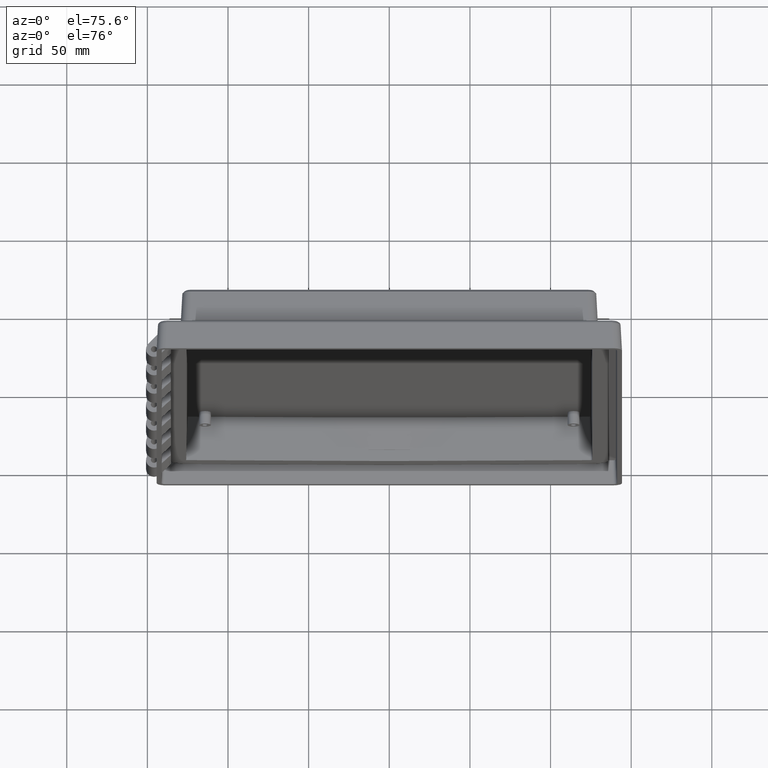
[diagram: clean part render]
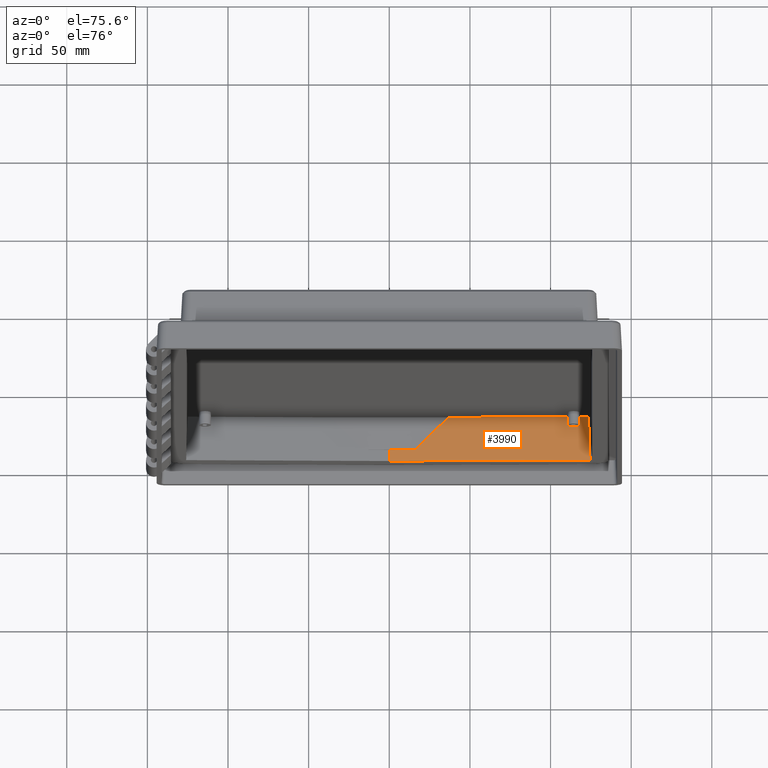
[diagram: same view with one face highlighted and labeled with its STEP entity id]
A machine part, auxiliary view. The second image highlights one B-rep face of the part: STEP entity #3990.
In plain terms, the highlighted planar face has unit normal (-0.0174, -0.0349, 0.9992).
Its self-contained STEP definition (entity closure, byte-faithful):
#74 = VERTEX_POINT ( 'NONE', #4454 ) ;
#76 = EDGE_CURVE ( 'NONE', #96, #74, #4453, .T. ) ;
#96 = VERTEX_POINT ( 'NONE', #4520 ) ;
#646 = DIRECTION ( 'NONE',  ( 0.0000000000000000000, -0.9993906415863165200, -0.03490480639812536300 ) ) ;
#647 = VECTOR ( 'NONE', #646, 1000.000000000000200 ) ;
#648 = CARTESIAN_POINT ( 'NONE',  ( 5.551115123125782700E-014, 0.07675789792664305900, -153.1977238315191100 ) ) ;
#649 = LINE ( 'NONE', #648, #647 ) ;
#650 = DIRECTION ( 'NONE',  ( 0.0000000000000000000, -0.9993906415863165200, -0.03490480639812537000 ) ) ;
#651 = DIRECTION ( 'NONE',  ( -0.01744177490282996400, -0.03489949670250105200, 0.9992386149554826100 ) ) ;
#652 = CARTESIAN_POINT ( 'NONE',  ( 0.0000000000000000000, 3.469446951953614200E-015, -153.2004046846862200 ) ) ;
#653 = AXIS2_PLACEMENT_3D ( 'NONE', #652, #651, #650 ) ;
#654 = PLANE ( 'NONE',  #653 ) ;
#655 = FACE_OUTER_BOUND ( 'NONE', #3991, .T. ) ;
#656 = DIRECTION ( 'NONE',  ( -0.7071608033720968600, -0.7060837636462101700, -0.03700428204050970600 ) ) ;
#657 = VECTOR ( 'NONE', #656, 999.9999999999998900 ) ;
#658 = CARTESIAN_POINT ( 'NONE',  ( 3.006537683799894700, -3.008367581152573400, -153.2529958878023700 ) ) ;
#659 = LINE ( 'NONE', #658, #657 ) ;
#799 = DIRECTION ( 'NONE',  ( -0.9998384261230575100, -0.003737334222642752900, -0.01758277511302959100 ) ) ;
#800 = VECTOR ( 'NONE', #799, 1000.000000000000100 ) ;
#801 = CARTESIAN_POINT ( 'NONE',  ( -0.04422625719539119400, 10.16508747959361100, -152.8461499078452400 ) ) ;
#802 = LINE ( 'NONE', #801, #800 ) ;
#803 = CARTESIAN_POINT ( 'NONE',  ( 0.0000000000000000000, 10.16525279460875500, -152.8453721618474500 ) ) ;
#808 = CARTESIAN_POINT ( 'NONE',  ( 16.26112852842698300, 10.22603588771700900, -152.5594101918631500 ) ) ;
#1039 = DIRECTION ( 'NONE',  ( -0.03487899055459543800, 0.9988036077738138300, 0.03427548855823895500 ) ) ;
#1040 = VECTOR ( 'NONE', #1039, 999.9999999999998900 ) ;
#1041 = CARTESIAN_POINT ( 'NONE',  ( 124.5899375198211900, -0.05043245628703391800, -151.0274406443271300 ) ) ;
#1042 = LINE ( 'NONE', #1041, #1040 ) ;
#1890 = VERTEX_POINT ( 'NONE', #5915 ) ;
#1895 = EDGE_CURVE ( 'NONE', #1890, #1898, #5909, .T. ) ;
#1898 = VERTEX_POINT ( 'NONE', #5904 ) ;
#3989 = EDGE_CURVE ( 'NONE', #96, #4077, #659, .T. ) ;
#3990 = ADVANCED_FACE ( 'NONE', ( #655 ), #654, .T. ) ;
#3991 = EDGE_LOOP ( 'NONE', ( #3992, #3993, #3994, #3995, #3996, #3997 ) ) ;
#3992 = ORIENTED_EDGE ( 'NONE', *, *, #1895, .F. ) ;
#3993 = ORIENTED_EDGE ( 'NONE', *, *, #4249, .T. ) ;
#3994 = ORIENTED_EDGE ( 'NONE', *, *, #76, .F. ) ;
#3995 = ORIENTED_EDGE ( 'NONE', *, *, #3989, .T. ) ;
#3996 = ORIENTED_EDGE ( 'NONE', *, *, #4082, .T. ) ;
#3997 = ORIENTED_EDGE ( 'NONE', *, *, #3998, .T. ) ;
#3998 = EDGE_CURVE ( 'NONE', #4080, #1898, #649, .T. ) ;
#4077 = VERTEX_POINT ( 'NONE', #808 ) ;
#4080 = VERTEX_POINT ( 'NONE', #803 ) ;
#4082 = EDGE_CURVE ( 'NONE', #4077, #4080, #802, .T. ) ;
#4249 = EDGE_CURVE ( 'NONE', #1890, #74, #1042, .T. ) ;
#4450 = DIRECTION ( 'NONE',  ( 0.9998476951563911600, 0.0000000000000000000, 0.01745240643728331400 ) ) ;
#4451 = VECTOR ( 'NONE', #4450, 1000.000000000000100 ) ;
#4452 = CARTESIAN_POINT ( 'NONE',  ( -0.01864921474554358200, 30.60000000000000100, -152.1319918874702100 ) ) ;
#4453 = LINE ( 'NONE', #4452, #4451 ) ;
#4454 = CARTESIAN_POINT ( 'NONE',  ( 123.5196008331928100, 30.60000000000000100, -149.9756237117650800 ) ) ;
#4520 = CARTESIAN_POINT ( 'NONE',  ( 36.66617049561030200, 30.60000000000000100, -151.4916559775459700 ) ) ;
#5904 = CARTESIAN_POINT ( 'NONE',  ( 4.235164736271501700E-019, 3.000000000000000000, -153.0956264179734200 ) ) ;
#5906 = DIRECTION ( 'NONE',  ( -0.9998476951563911600, 0.0000000000000000000, -0.01745240643728331400 ) ) ;
#5907 = VECTOR ( 'NONE', #5906, 1000.000000000000100 ) ;
#5908 = CARTESIAN_POINT ( 'NONE',  ( -0.001828354386817996600, 3.000000000000000000, -153.0956583320179600 ) ) ;
#5909 = LINE ( 'NONE', #5908, #5907 ) ;
#5915 = CARTESIAN_POINT ( 'NONE',  ( 124.4834140711650700, 3.000000000000000000, -150.9227603428750800 ) ) ;